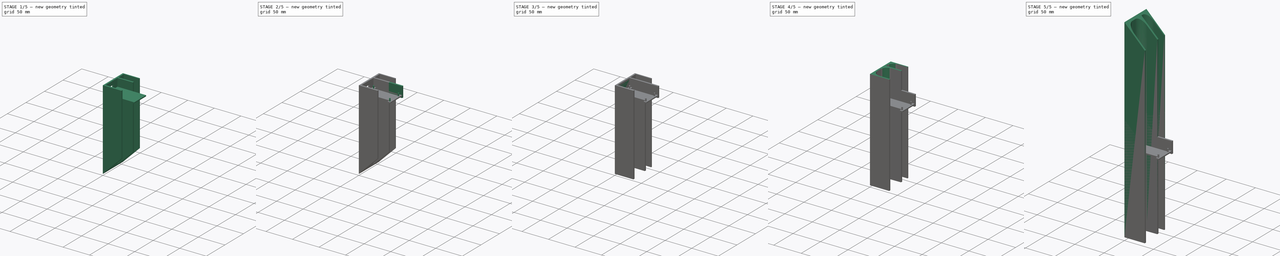
[diagram: build sequence overview — one tinted view per stage of 5, left to right]
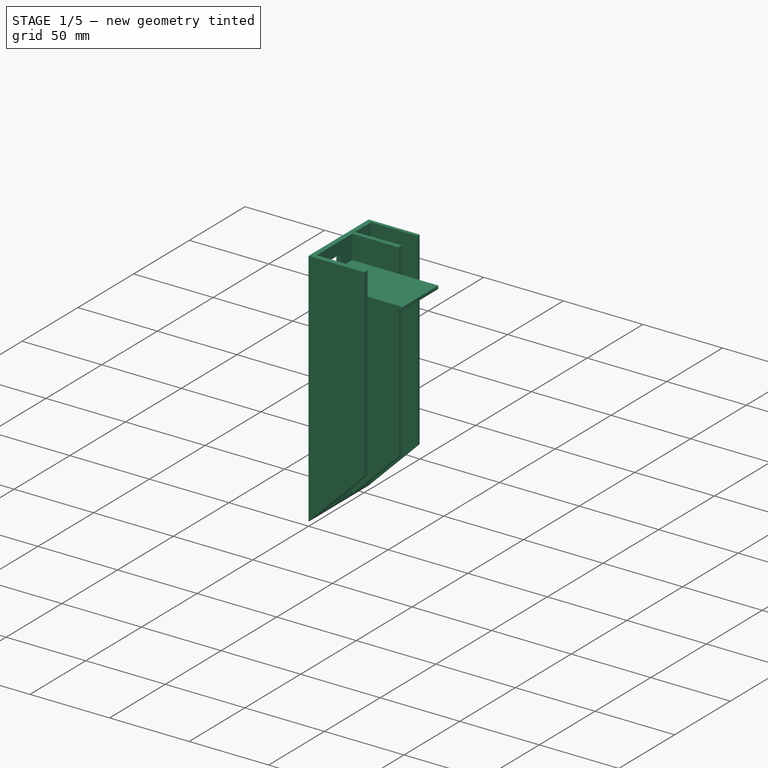
[diagram: stage 1 of 5 — iso view after this stage's code; geometry added in this stage tinted green]
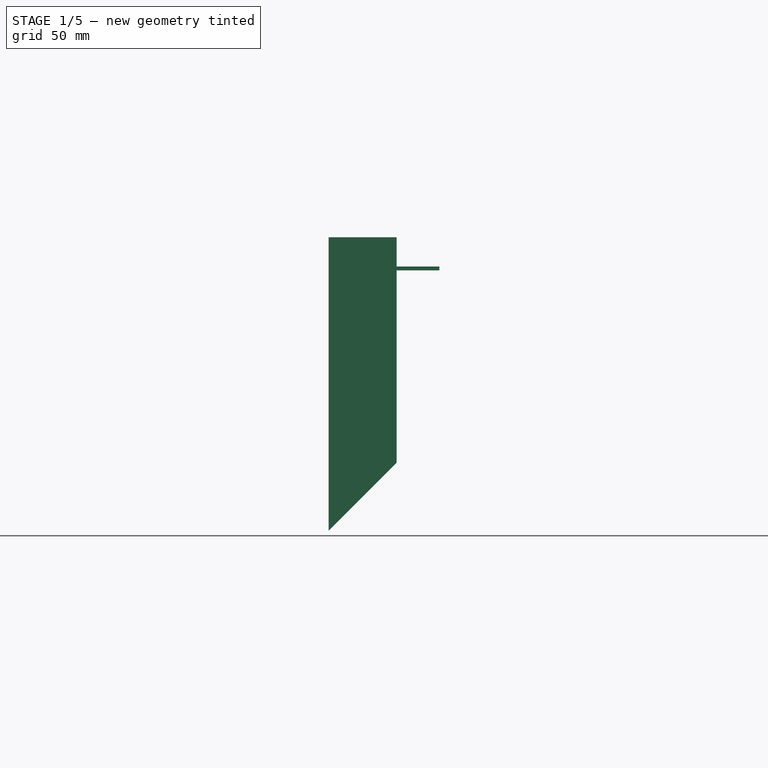
[diagram: stage 1 of 5 — front view after this stage's code; geometry added in this stage tinted green]
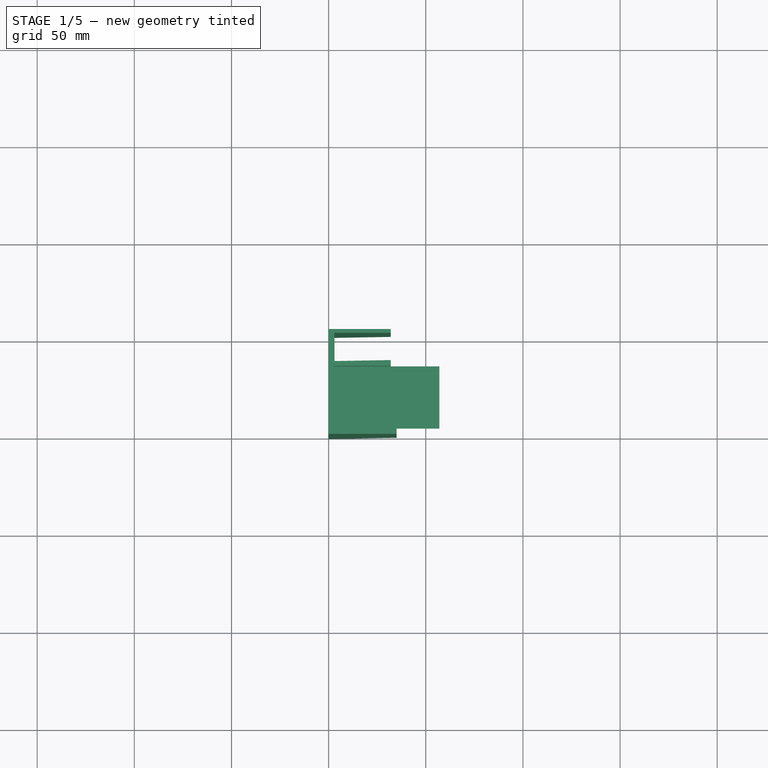
[diagram: stage 1 of 5 — top view after this stage's code; geometry added in this stage tinted green]
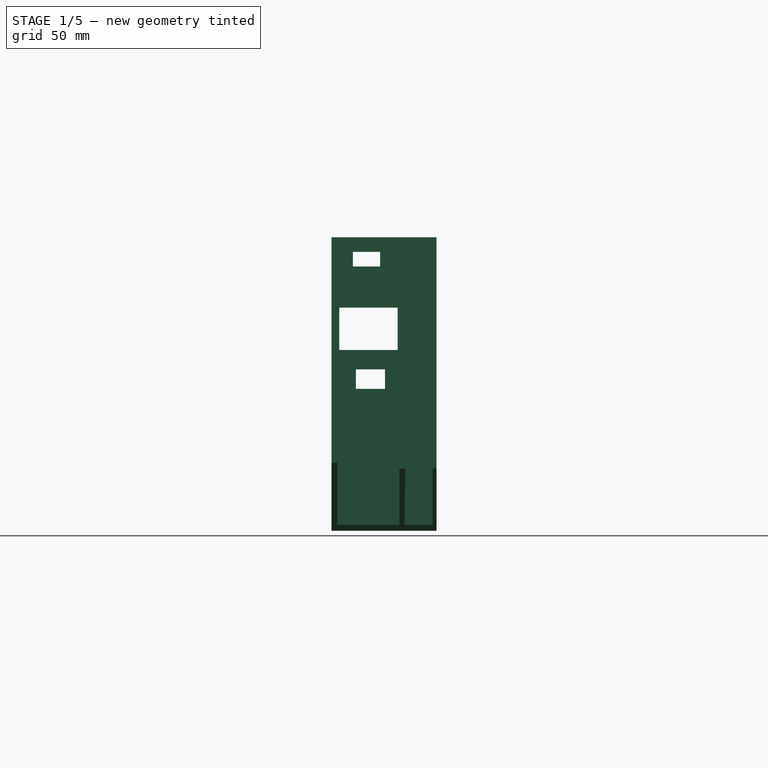
[diagram: stage 1 of 5 — right view after this stage's code; geometry added in this stage tinted green]
FCSTD DOCUMENT  (FreeCAD 2024.317R38972 (Git))
Label: frame_edge_basic
License: All rights reserved
LicenseURL: https://en.wikipedia.org/wiki/All_rights_reserved
objects: Sketcher::SketchObject×18, PartDesign::Pad×9, PartDesign::Pocket×9, PartDesign::Body×5
note: 95 computed .brp shape members not serialized (recipe doc carries the construction recipe); baked Part::Feature solids carry a one-line shape summary decoded from their .brp

FEATURE [PartDesign::Body] Body003  label="Bottom_R"
  AutoGroupSolids = false
  ClaimAllChildren = false
  ExportMode = 0
  Group = -> [Sketch008,Pad003,Sketch010,Pocket006,Sketch011,Pad004]
  InvalidShape = false
  Origin = -> Origin003
  Tip = -> Pad004
  TreeRank = 20
  ValidateShape = false
  _ExportChildren = -> [Pad003,Pocket006,Pad004]
  _GroupVersion = 1
FEATURE [Sketcher::SketchObject] Sketch012  label="Frame-edge-base-sketch004"
  ArcFitTolerance = 1e-06
  AttachmentSupport = -> [XY_Plane004]
  ExternalBSplineMaxDegree = 5
  ExternalBSplineTolerance = 0.0001
  FullyConstrained = true
  InternalTolerance = 1e-06
  InvalidShape = false
  MakeInternals = false
  MapMode = 5
  Support = -> [XY_Plane004]
  TreeRank = 11
  ValidateShape = false
  sketch-geometry (13):
    g0: LineSegment StartX=3 StartY=40.5 StartZ=0 EndX=3 EndY=37.5 EndZ=0
    g1: LineSegment StartX=3 StartY=37.5 StartZ=0 EndX=32 EndY=38 EndZ=0
    g2: LineSegment StartX=32 StartY=38 StartZ=0 EndX=32 EndY=35 EndZ=0
    g3: LineSegment StartX=35 StartY=3 StartZ=0 EndX=35 EndY=0 EndZ=0
    g4: LineSegment StartX=35 StartY=0 StartZ=0 EndX=0 EndY=0 EndZ=0
    g5: LineSegment StartX=0 StartY=0 StartZ=0 EndX=-2e-16 EndY=54 EndZ=0
    g6: LineSegment StartX=-2e-16 StartY=54 StartZ=0 EndX=32 EndY=54 EndZ=0
    g7: LineSegment StartX=32 StartY=54 StartZ=0 EndX=32 EndY=52 EndZ=0
    g8: LineSegment StartX=3 StartY=40.5 StartZ=0 EndX=3 EndY=52 EndZ=0
    g9: LineSegment StartX=3 StartY=35 StartZ=0 EndX=32 EndY=35 EndZ=0
    g10: LineSegment StartX=3 StartY=52 StartZ=0 EndX=32 EndY=52 EndZ=0
    g11: LineSegment StartX=3 StartY=35 StartZ=0 EndX=3 EndY=3 EndZ=0
    g12: LineSegment StartX=3 StartY=3 StartZ=0 EndX=35 EndY=3 EndZ=0
  constraints (38):
    c: Coincident(g0,g1)
    c: Coincident(g1,g2)
    c: Coincident(g3,g4)
    c: Horizontal(g4)
    c: Coincident(g4,g5)
    c: Coincident(g5,g6)
    c: Horizontal(g6)
    c: Coincident(g6,g7)
    c: DistanceY(g7,g6) = 2
    c: DistanceY(g3,g3) = 3
    c: DistanceY(g2,g1) = 3
    c: DistanceX(g5,g0) = 3
    c: Vertical(g7,g6)
    c: Vertical(g3,g3)
    c: Vertical(g2,g1)
    c: Coincident(g4,g-1)
    c: DistanceX(g4,g3) = 35
    c: DistanceY(g4,g5) = 54
    c: DistanceX(g0,g1) = 29
    c: DistanceX(g5,g6) = 32
    c: DistanceX(g5,g0) = 3
    c: DistanceY(g0,g5) = 16.5
    c: DistanceY(g0,g0) = 3
    c: DistanceY(g1,g7) = 14
    c: Coincident(g8,g0)
    c: Vertical(g8)
    c: Coincident(g9,g2)
    c: Horizontal(g9)
    c: Coincident(g10,g8)
    c: Coincident(g10,g7)
    c: Horizontal(g10)
    c: Coincident(g11,g9)
    c: Vertical(g11)
    c: Coincident(g12,g11)
    c: Coincident(g12,g3)
    c: Horizontal(g12)
    c: DistanceX(g11,g3) = 32
    c: Vertical(g9,g0)
FEATURE [PartDesign::Pad] Pad005
  AddSubType = 0
  AlongSketchNormal = false
  AutoTaperInnerAngle = true
  CheckUpToFaceLimits = true
  ClaimChildren = false
  Direction = (0,0,1)
  Fit = 0
  FitJoin = 0
  InnerFit = 0
  InnerFitJoin = 0
  InvalidShape = false
  Length = 151
  Length2 = 10
  Linearize = true
  NewSolid = false
  Profile = -> Sketch012
  ReferenceAxis = -> Sketch012 [N_Axis]
  Suppress = false
  TaperInnerAngle = 0
  TaperInnerAngleRev = 0
  TreeRank = 12
  Type = 0
  ValidateShape = true
  _ProfileBasedVersion = 1
  expr: Length = 334 mm - 180 - 3
FEATURE [Sketcher::SketchObject] Sketch013  label="Angle-taper-T003"
  ArcFitTolerance = 1e-06
  AttachmentSupport = -> [XZ_Plane004]
  ExternalBSplineMaxDegree = 5
  ExternalBSplineTolerance = 0.0001
  ExternalGeometry = -> [Pad005]
  FullyConstrained = true
  InternalTolerance = 1e-06
  InvalidShape = false
  MakeInternals = false
  MapMode = 5
  Placement = pos=(0,0,0) rot=(1,0,0;1.5708rad)
  Support = -> [XZ_Plane004]
  TreeRank = 15
  ValidateShape = false
  sketch-geometry (3):
    g0: LineSegment StartX=0 StartY=0 StartZ=0 EndX=35 EndY=0 EndZ=0
    g1: LineSegment StartX=35 StartY=0 StartZ=0 EndX=35 EndY=35 EndZ=0
    g2: LineSegment StartX=35 StartY=35 StartZ=0 EndX=0 EndY=0 EndZ=0
  constraints (7):
    c: Coincident(g-1,g0)
    c: Coincident(g0,g-4)
    c: Coincident(g0,g1)
    c: PointOnObject(g1,g-4)
    c: Coincident(g1,g2)
    c: Coincident(g2,g0)
    c: Angle(g0,g2) = 0.785398
FEATURE [PartDesign::Pocket] Pocket007
  AddSubType = 1
  AlongSketchNormal = false
  AutoTaperInnerAngle = true
  BaseFeature = -> Pad005
  CheckUpToFaceLimits = true
  ClaimChildren = false
  Direction = (0,1,2e-16)
  Fit = 0
  FitJoin = 0
  InnerFit = 0
  InnerFitJoin = 0
  InvalidShape = false
  Length = 5
  Length2 = 10
  Linearize = true
  NewSolid = false
  Profile = -> Sketch013
  ReferenceAxis = -> Sketch013 [N_Axis]
  Suppress = false
  TaperInnerAngle = 0
  TaperInnerAngleRev = 0
  TreeRank = 16
  Type = 1
  ValidateShape = true
  _ProfileBasedVersion = 1
  _Version = 1
FEATURE [Sketcher::SketchObject] Sketch014  label="Hole-switch-cable"
  ArcFitTolerance = 1e-06
  AttachmentSupport = -> [Pocket007]
  ExternalBSplineMaxDegree = 5
  ExternalBSplineTolerance = 0.0001
  ExternalGeometry = -> [Pocket007]
  FullyConstrained = true
  InternalTolerance = 1e-06
  InvalidShape = false
  MakeInternals = false
  MapMode = 5
  Placement = pos=(0,0,0) rot=(0.57735,-0.57735,-0.57735;2.0944rad)
  Support = -> [Pocket007]
  TreeRank = 24
  ValidateShape = false
  sketch-geometry (12):
    g0: LineSegment StartX=-27.5 StartY=83 StartZ=0 EndX=-12.5 EndY=83 EndZ=0
    g1: LineSegment StartX=-12.5 StartY=83 StartZ=0 EndX=-12.5 EndY=73 EndZ=0
    g2: LineSegment StartX=-12.5 StartY=73 StartZ=0 EndX=-27.5 EndY=73 EndZ=0
    g3: LineSegment StartX=-27.5 StartY=73 StartZ=0 EndX=-27.5 EndY=83 EndZ=0
    g4: LineSegment StartX=-34 StartY=114.8 StartZ=0 EndX=-4 EndY=114.8 EndZ=0
    g5: LineSegment StartX=-4 StartY=114.8 StartZ=0 EndX=-4 EndY=93 EndZ=0
    g6: LineSegment StartX=-4 StartY=93 StartZ=0 EndX=-34 EndY=93 EndZ=0
    g7: LineSegment StartX=-34 StartY=93 StartZ=0 EndX=-34 EndY=114.8 EndZ=0
    g8: LineSegment StartX=-25 StartY=143.5 StartZ=0 EndX=-11 EndY=143.5 EndZ=0
    g9: LineSegment StartX=-11 StartY=143.5 StartZ=0 EndX=-11 EndY=134.5 EndZ=0
    g10: LineSegment StartX=-11 StartY=134.5 StartZ=0 EndX=-25 EndY=134.5 EndZ=0
    g11: LineSegment StartX=-25 StartY=134.5 StartZ=0 EndX=-25 EndY=143.5 EndZ=0
  constraints (36):
    c: Coincident(g0,g1)
    c: Coincident(g1,g2)
    c: Coincident(g2,g3)
    c: Coincident(g3,g0)
    c: Horizontal(g0)
    c: Horizontal(g2)
    c: Vertical(g1)
    c: Vertical(g3)
    c: DistanceY(g-1,g2) = 73
    c: DistanceY(g2,g0) = 10
    c: DistanceX(g2,g1) = 15
    c: DistanceX(g-4,g2) = 7.5
    c: Coincident(g4,g5)
    c: Coincident(g5,g6)
    c: Coincident(g6,g7)
    c: Coincident(g7,g4)
    c: Horizontal(g4)
    c: Horizontal(g6)
    c: Vertical(g5)
    c: Vertical(g7)
    c: DistanceY(g0,g5) = 10
    c: DistanceX(g6,g5) = 30
    c: DistanceY(g5,g4) = 21.8
    c: Coincident(g8,g9)
    c: Coincident(g9,g10)
    c: Coincident(g10,g11)
    c: Coincident(g11,g8)
    c: Horizontal(g8)
    c: Horizontal(g10)
    c: Vertical(g9)
    c: Vertical(g11)
    c: DistanceX(g10,g9) = 14
    c: DistanceY(g9,g8) = 9
    c: DistanceX(g8,g-3) = 11
    c: DistanceY(g8,g-3) = 7.5
    c: DistanceX(g-4,g4) = 1
FEATURE [PartDesign::Pocket] Pocket008
  AddSubType = 1
  AlongSketchNormal = false
  AutoTaperInnerAngle = true
  BaseFeature = -> Pocket007
  CheckUpToFaceLimits = true
  ClaimChildren = false
  Direction = (1,0,0)
  Fit = 0
  FitJoin = 0
  InnerFit = 0
  InnerFitJoin = 0
  InvalidShape = false
  Length = 5
  Length2 = 10
  Linearize = true
  NewSolid = false
  Profile = -> Sketch014
  ReferenceAxis = -> Sketch014 [N_Axis]
  Suppress = false
  TaperInnerAngle = 0
  TaperInnerAngleRev = 0
  TreeRank = 25
  Type = 0
  ValidateShape = true
  _ProfileBasedVersion = 1
  _Version = 1
FEATURE [Sketcher::SketchObject] Sketch015  label="ESP_pad"
  ArcFitTolerance = 1e-06
  AttachmentSupport = -> [Pocket008]
  ExternalBSplineMaxDegree = 5
  ExternalBSplineTolerance = 0.0001
  ExternalGeometry = -> [Pocket008]
  FullyConstrained = true
  InternalTolerance = 1e-06
  InvalidShape = false
  MakeInternals = false
  MapMode = 5
  Placement = pos=(0,35,0) rot=(1,0,0;1.5708rad)
  Support = -> [Pocket008]
  TreeRank = 26
  ValidateShape = false
  sketch-geometry (4):
    g0: LineSegment StartX=3 StartY=136 StartZ=0 EndX=57 EndY=136 EndZ=0
    g1: LineSegment StartX=57 StartY=136 StartZ=0 EndX=57 EndY=134 EndZ=0
    g2: LineSegment StartX=57 StartY=134 StartZ=0 EndX=3 EndY=134 EndZ=0
    g3: LineSegment StartX=3 StartY=134 StartZ=0 EndX=3 EndY=136 EndZ=0
  constraints (12):
    c: Coincident(g0,g1)
    c: Coincident(g1,g2)
    c: Coincident(g2,g3)
    c: Coincident(g3,g0)
    c: Horizontal(g0)
    c: Horizontal(g2)
    c: Vertical(g1)
    c: Vertical(g3)
    c: DistanceX(g2,g1) = 54
    c: DistanceY(g2,g0) = 2
    c: DistanceY(g0,g-3) = 15
    c: Vertical(g-3,g0)
FEATURE [PartDesign::Pad] Pad006
  AddSubType = 0
  AlongSketchNormal = false
  AutoTaperInnerAngle = true
  BaseFeature = -> Pocket008
  CheckUpToFaceLimits = true
  ClaimChildren = false
  Direction = (0,-1,2e-16)
  Fit = 0
  FitJoin = 0
  InnerFit = 0
  InnerFitJoin = 0
  InvalidShape = false
  Length = 32
  Length2 = 10
  Linearize = true
  NewSolid = false
  Profile = -> Sketch015
  ReferenceAxis = -> Sketch015 [N_Axis]
  Suppress = false
  TaperInnerAngle = 0
  TaperInnerAngleRev = 0
  TreeRank = 27
  Type = 0
  ValidateShape = true
  _ProfileBasedVersion = 1
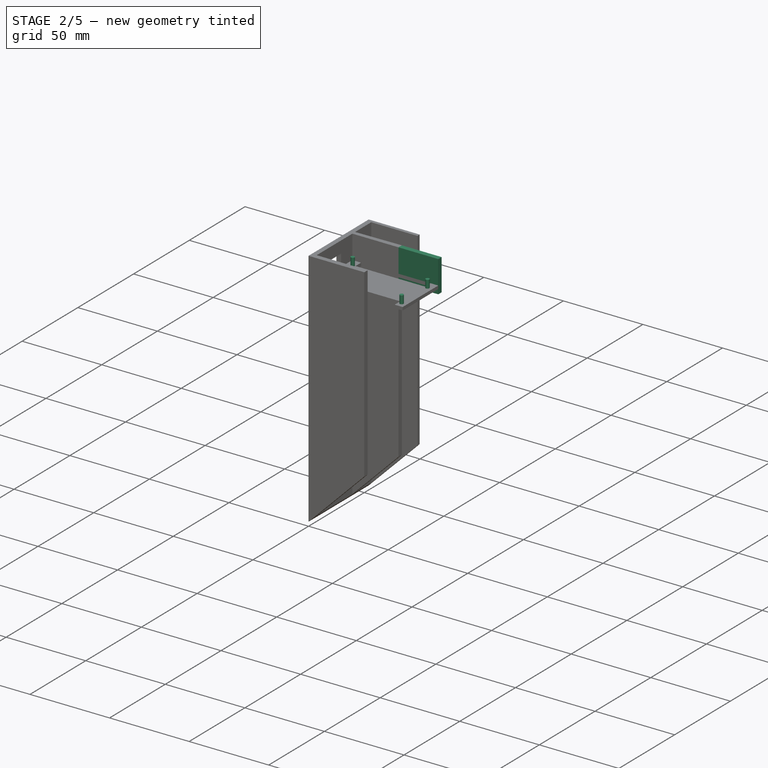
[diagram: stage 2 of 5 — iso view after this stage's code; geometry added in this stage tinted green]
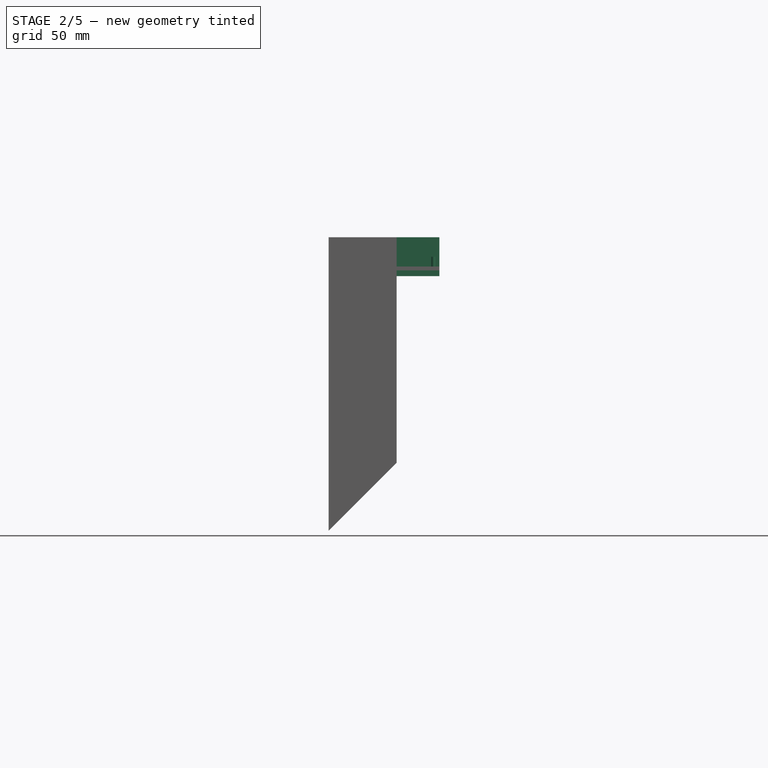
[diagram: stage 2 of 5 — front view after this stage's code; geometry added in this stage tinted green]
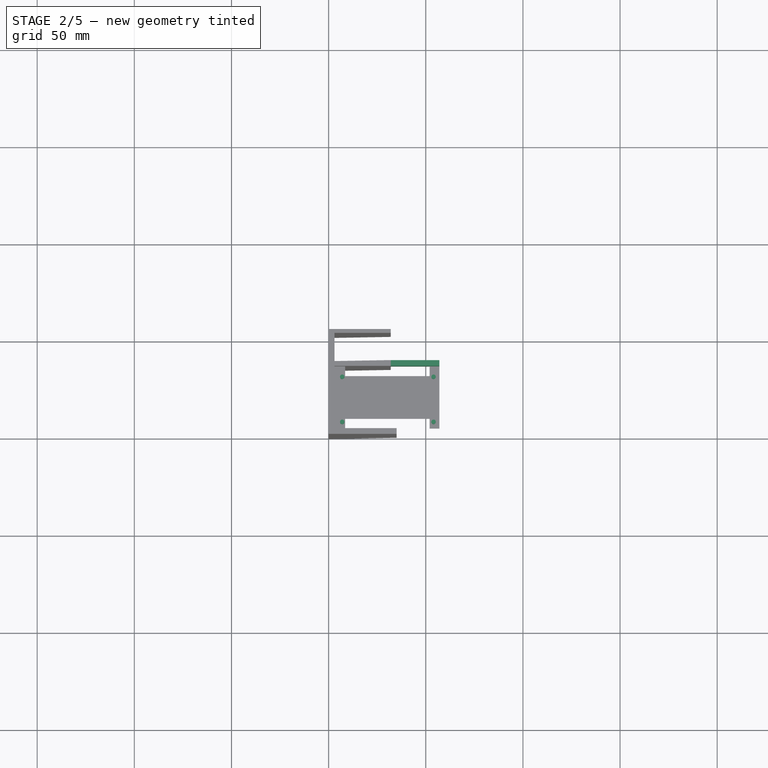
[diagram: stage 2 of 5 — top view after this stage's code; geometry added in this stage tinted green]
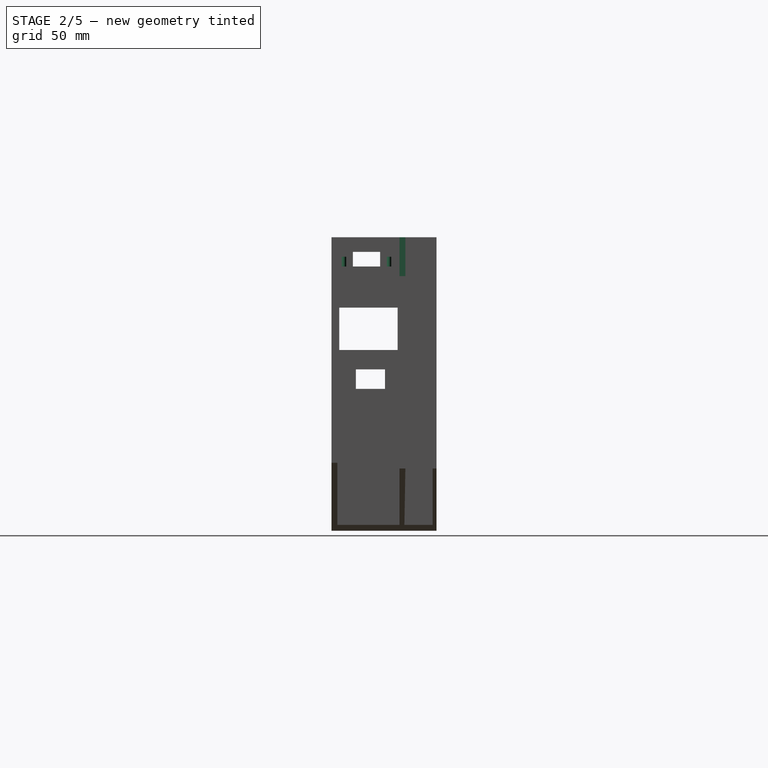
[diagram: stage 2 of 5 — right view after this stage's code; geometry added in this stage tinted green]
FEATURE [Sketcher::SketchObject] Sketch016  label="ESP_pad_extruded_holders"
  ArcFitTolerance = 1e-06
  AttachmentSupport = -> [Pad006]
  ExternalBSplineMaxDegree = 5
  ExternalBSplineTolerance = 0.0001
  ExternalGeometry = -> [Pad006]
  FullyConstrained = true
  InternalTolerance = 1e-06
  InvalidShape = false
  MakeInternals = false
  MapMode = 5
  Placement = pos=(0,3.02e-14,136) rot=(0,0,1;0rad)
  Support = -> [Pad006]
  TreeRank = 28
  ValidateShape = false
  expr: Constraints[0] = 44 mm + 3
  expr: Constraints[8] = 20.2 mm + 3
  sketch-geometry (4):
    g0: Circle CenterX=7 CenterY=29.6 CenterZ=0 NormalX=0 NormalY=0 NormalZ=1 AngleXU=0 Radius=1.15
    g1: Circle CenterX=7 CenterY=6.4 CenterZ=0 NormalX=0 NormalY=0 NormalZ=1 AngleXU=0 Radius=1.15
    g2: Circle CenterX=54 CenterY=29.6 CenterZ=0 NormalX=0 NormalY=0 NormalZ=1 AngleXU=0 Radius=1.15
    g3: Circle CenterX=54 CenterY=6.4 CenterZ=0 NormalX=0 NormalY=0 NormalZ=1 AngleXU=0 Radius=1.15
  constraints (12):
    c: DistanceX(g0,g2) = 47
    c: Diameter(g0) = 2.3
    c: Diameter(g2) = 2.3
    c: Vertical(g1,g0)
    c: Vertical(g3,g2)
    c: Horizontal(g3,g1)
    c: Equal(g3,g1)
    c: Diameter(g3) = 2.3
    c: DistanceY(g1,g0) = 23.2
    c: Horizontal(g2,g0)
    c: DistanceX(g-4,g0) = 4
    c: DistanceY(g-7,g0) = 4.6
FEATURE [PartDesign::Pad] Pad007
  AddSubType = 0
  AlongSketchNormal = false
  AutoTaperInnerAngle = true
  BaseFeature = -> Pad006
  CheckUpToFaceLimits = true
  ClaimChildren = false
  Direction = (0,2e-16,1)
  Fit = 0
  FitJoin = 0
  InnerFit = 0
  InnerFitJoin = 0
  InvalidShape = false
  Length = 5
  Length2 = 10
  Linearize = true
  NewSolid = false
  Profile = -> Sketch016
  ReferenceAxis = -> Sketch016 [N_Axis]
  Suppress = false
  TaperInnerAngle = 0
  TaperInnerAngleRev = 0
  TreeRank = 29
  Type = 0
  ValidateShape = true
  _ProfileBasedVersion = 1
FEATURE [Sketcher::SketchObject] Sketch017  label="ESP_pocket_pins"
  ArcFitTolerance = 1e-06
  AttachmentSupport = -> [Pad007]
  ExternalBSplineMaxDegree = 5
  ExternalBSplineTolerance = 0.0001
  ExternalGeometry = -> [Pad007]
  FullyConstrained = true
  InternalTolerance = 1e-06
  InvalidShape = false
  MakeInternals = false
  MapMode = 5
  Placement = pos=(0,3.02e-14,136) rot=(0,0,1;0rad)
  Support = -> [Pad007]
  TreeRank = 30
  ValidateShape = false
  sketch-geometry (8):
    g0: LineSegment StartX=8.5 StartY=35 StartZ=0 EndX=52 EndY=35 EndZ=0
    g1: LineSegment StartX=52 StartY=35 StartZ=0 EndX=52 EndY=30 EndZ=0
    g2: LineSegment StartX=52 StartY=30 StartZ=0 EndX=8.5 EndY=30 EndZ=0
    g3: LineSegment StartX=8.5 StartY=30 StartZ=0 EndX=8.5 EndY=35 EndZ=0
    g4: LineSegment StartX=8.5 StartY=8 StartZ=0 EndX=52 EndY=8 EndZ=0
    g5: LineSegment StartX=52 StartY=8 StartZ=0 EndX=52 EndY=3 EndZ=0
    g6: LineSegment StartX=52 StartY=3 StartZ=0 EndX=8.5 EndY=3 EndZ=0
    g7: LineSegment StartX=8.5 StartY=3 StartZ=0 EndX=8.5 EndY=8 EndZ=0
  constraints (24):
    c: Coincident(g0,g1)
    c: Coincident(g1,g2)
    c: Coincident(g2,g3)
    c: Coincident(g3,g0)
    c: Horizontal(g0)
    c: Horizontal(g2)
    c: Vertical(g1)
    c: Vertical(g3)
    c: DistanceX(g2,g1) = 43.5
    c: DistanceY(g1,g0) = 5
    c: DistanceY(g0,g-5) = 0
    c: DistanceX(g-5,g0) = 5.5
    c: Coincident(g4,g5)
    c: Coincident(g5,g6)
    c: Coincident(g6,g7)
    c: Coincident(g7,g4)
    c: Horizontal(g4)
    c: Horizontal(g6)
    c: Vertical(g5)
    c: Vertical(g7)
    c: DistanceX(g4,g4) = 43.5
    c: DistanceY(g6,g4) = 5
    c: Vertical(g4,g2)
    c: DistanceY(g-5,g6) = 0
FEATURE [PartDesign::Pocket] Pocket009
  AddSubType = 1
  AlongSketchNormal = false
  AutoTaperInnerAngle = true
  BaseFeature = -> Pad007
  CheckUpToFaceLimits = true
  ClaimChildren = false
  Direction = (0,-2e-16,-1)
  Fit = 0
  FitJoin = 0
  InnerFit = 0
  InnerFitJoin = 0
  InvalidShape = false
  Length = 5
  Length2 = 10
  Linearize = true
  NewSolid = false
  Profile = -> Sketch017
  ReferenceAxis = -> Sketch017 [N_Axis]
  Suppress = false
  TaperInnerAngle = 0
  TaperInnerAngleRev = 0
  TreeRank = 31
  Type = 0
  ValidateShape = true
  _ProfileBasedVersion = 1
  _Version = 1
FEATURE [Sketcher::SketchObject] Sketch018  label="ESP_additional_stabilization"
  ArcFitTolerance = 1e-06
  AttachmentSupport = -> [Pocket009]
  ExternalBSplineMaxDegree = 5
  ExternalBSplineTolerance = 0.0001
  ExternalGeometry = -> [Pocket009]
  FullyConstrained = true
  InternalTolerance = 1e-06
  InvalidShape = false
  MakeInternals = false
  MapMode = 5
  Placement = pos=(32,0,0) rot=(0.57735,0.57735,0.57735;2.0944rad)
  Support = -> [Pocket009]
  TreeRank = 32
  ValidateShape = false
  sketch-geometry (4):
    g0: LineSegment StartX=38 StartY=151 StartZ=0 EndX=35 EndY=151 EndZ=0
    g1: LineSegment StartX=35 StartY=151 StartZ=0 EndX=35 EndY=131 EndZ=0
    g2: LineSegment StartX=35 StartY=131 StartZ=0 EndX=38 EndY=131 EndZ=0
    g3: LineSegment StartX=38 StartY=131 StartZ=0 EndX=38 EndY=151 EndZ=0
  constraints (10):
    c: Coincident(g0,g1)
    c: Coincident(g1,g2)
    c: Coincident(g2,g3)
    c: Coincident(g3,g0)
    c: Horizontal(g0)
    c: Horizontal(g2)
    c: Vertical(g1)
    c: Vertical(g3)
    c: Coincident(g0,g-3)
    c: Coincident(g1,g-4)
FEATURE [PartDesign::Pad] Pad008
  AddSubType = 0
  AlongSketchNormal = false
  AutoTaperInnerAngle = true
  BaseFeature = -> Pocket009
  CheckUpToFaceLimits = true
  ClaimChildren = false
  Direction = (1,0,0)
  Fit = 0
  FitJoin = 0
  InnerFit = 0
  InnerFitJoin = 0
  InvalidShape = false
  Length = 25
  Length2 = 10
  Linearize = true
  NewSolid = false
  Profile = -> Sketch018
  ReferenceAxis = -> Sketch018 [N_Axis]
  Suppress = false
  TaperInnerAngle = 0
  TaperInnerAngleRev = 0
  TreeRank = 33
  Type = 0
  ValidateShape = true
  _ProfileBasedVersion = 1
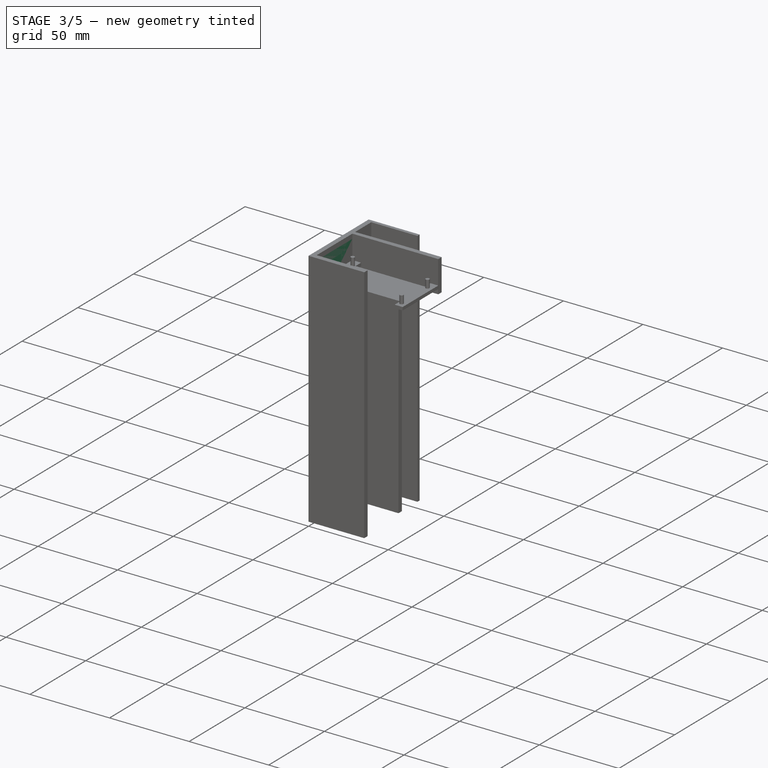
[diagram: stage 3 of 5 — iso view after this stage's code; geometry added in this stage tinted green]
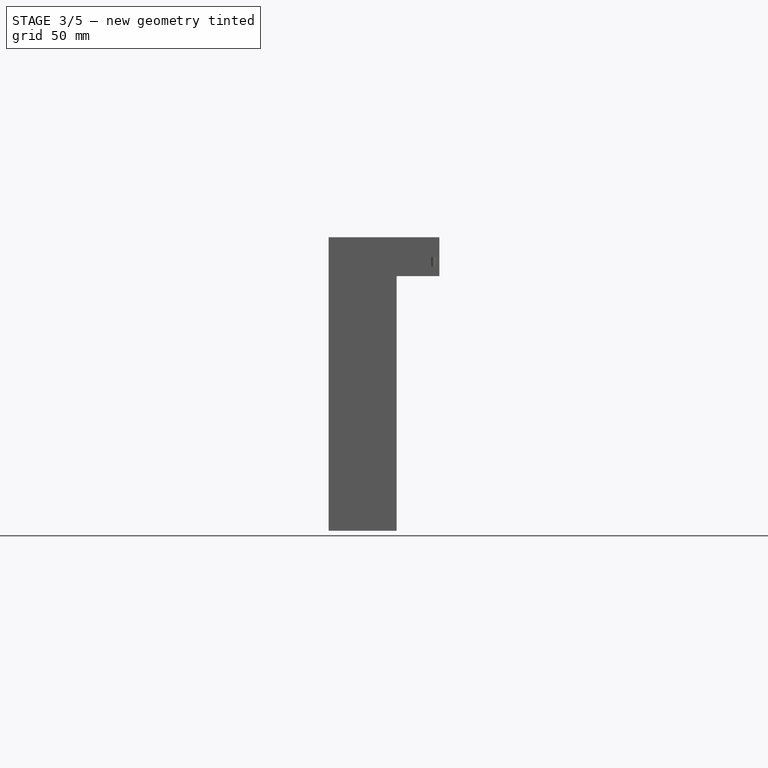
[diagram: stage 3 of 5 — front view after this stage's code; geometry added in this stage tinted green]
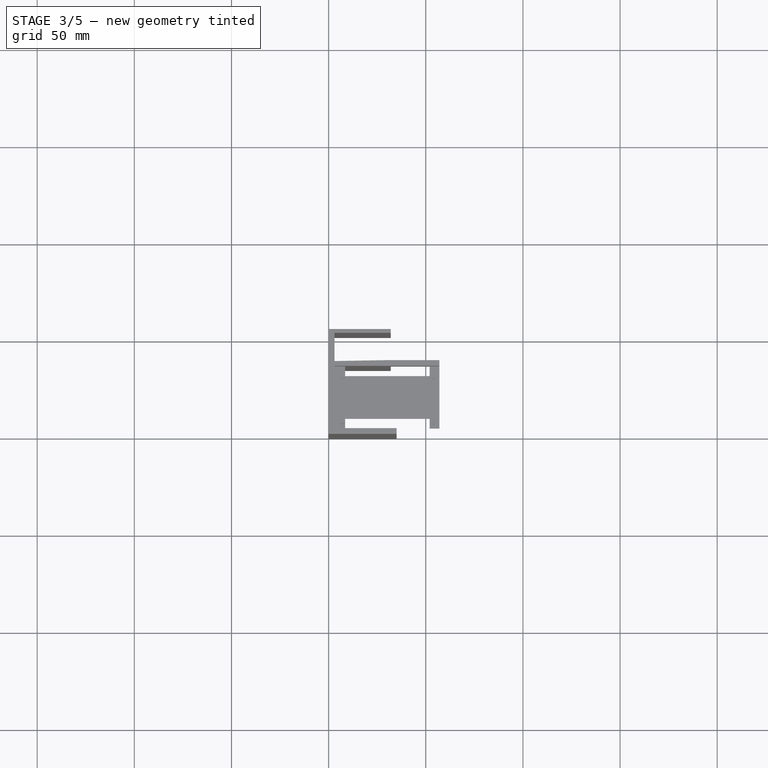
[diagram: stage 3 of 5 — top view after this stage's code; geometry added in this stage tinted green]
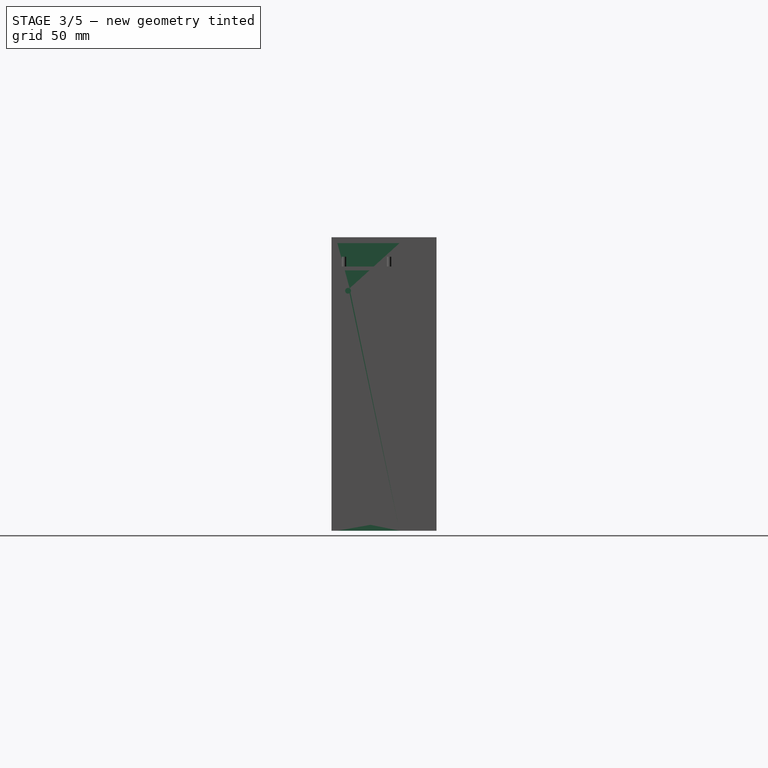
[diagram: stage 3 of 5 — right view after this stage's code; geometry added in this stage tinted green]
FEATURE [PartDesign::Body] Body002  label="Right_U"
  AutoGroupSolids = false
  ClaimAllChildren = false
  ExportMode = 0
  Group = -> [Sketch006,Pad002,Sketch007,Pocket004]
  InvalidShape = false
  Origin = -> Origin002
  Tip = -> Pocket004
  TreeRank = 19
  ValidateShape = false
  _ExportChildren = -> [Pad002,Pocket004]
  _GroupVersion = 1
FEATURE [Sketcher::SketchObject] Sketch008  label="Frame-edge-base-sketch003"
  ArcFitTolerance = 1e-06
  AttachmentSupport = -> [XY_Plane003]
  ExternalBSplineMaxDegree = 5
  ExternalBSplineTolerance = 0.0001
  FullyConstrained = true
  InternalTolerance = 1e-06
  InvalidShape = false
  MakeInternals = false
  MapMode = 5
  Support = -> [XY_Plane003]
  TreeRank = 11
  ValidateShape = false
  sketch-geometry (13):
    g0: LineSegment StartX=3 StartY=40.5 StartZ=0 EndX=3 EndY=37.5 EndZ=0
    g1: LineSegment StartX=3 StartY=37.5 StartZ=0 EndX=32 EndY=38 EndZ=0
    g2: LineSegment StartX=32 StartY=38 StartZ=0 EndX=32 EndY=35 EndZ=0
    g3: LineSegment StartX=35 StartY=3 StartZ=0 EndX=35 EndY=0 EndZ=0
    g4: LineSegment StartX=35 StartY=0 StartZ=0 EndX=0 EndY=0 EndZ=0
    g5: LineSegment StartX=0 StartY=0 StartZ=0 EndX=-2e-16 EndY=54 EndZ=0
    g6: LineSegment StartX=-2e-16 StartY=54 StartZ=0 EndX=32 EndY=54 EndZ=0
    g7: LineSegment StartX=32 StartY=54 StartZ=0 EndX=32 EndY=52 EndZ=0
    g8: LineSegment StartX=3 StartY=40.5 StartZ=0 EndX=3 EndY=52 EndZ=0
    g9: LineSegment StartX=3 StartY=35 StartZ=0 EndX=32 EndY=35 EndZ=0
    g10: LineSegment StartX=3 StartY=52 StartZ=0 EndX=32 EndY=52 EndZ=0
    g11: LineSegment StartX=3 StartY=35 StartZ=0 EndX=3 EndY=3 EndZ=0
    g12: LineSegment StartX=3 StartY=3 StartZ=0 EndX=35 EndY=3 EndZ=0
  constraints (38):
    c: Coincident(g0,g1)
    c: Coincident(g1,g2)
    c: Coincident(g3,g4)
    c: Horizontal(g4)
    c: Coincident(g4,g5)
    c: Coincident(g5,g6)
    c: Horizontal(g6)
    c: Coincident(g6,g7)
    c: DistanceY(g7,g6) = 2
    c: DistanceY(g3,g3) = 3
    c: DistanceY(g2,g1) = 3
    c: DistanceX(g5,g0) = 3
    c: Vertical(g7,g6)
    c: Vertical(g3,g3)
    c: Vertical(g2,g1)
    c: Coincident(g4,g-1)
    c: DistanceX(g4,g3) = 35
    c: DistanceY(g4,g5) = 54
    c: DistanceX(g0,g1) = 29
    c: DistanceX(g5,g6) = 32
    c: DistanceX(g5,g0) = 3
    c: DistanceY(g0,g5) = 16.5
    c: DistanceY(g0,g0) = 3
    c: DistanceY(g1,g7) = 14
    c: Coincident(g8,g0)
    c: Vertical(g8)
    c: Coincident(g9,g2)
    c: Horizontal(g9)
    c: Coincident(g10,g8)
    c: Coincident(g10,g7)
    c: Horizontal(g10)
    c: Coincident(g11,g9)
    c: Vertical(g11)
    c: Coincident(g12,g11)
    c: Coincident(g12,g3)
    c: Horizontal(g12)
    c: DistanceX(g11,g3) = 32
    c: Vertical(g9,g0)
FEATURE [PartDesign::Pad] Pad003
  AddSubType = 0
  AlongSketchNormal = false
  AutoTaperInnerAngle = true
  CheckUpToFaceLimits = true
  ClaimChildren = false
  Direction = (0,0,1)
  Fit = 0
  FitJoin = 0
  InnerFit = 0
  InnerFitJoin = 0
  InvalidShape = false
  Length = 151
  Length2 = 10
  Linearize = true
  NewSolid = false
  Profile = -> Sketch008
  ReferenceAxis = -> Sketch008 [N_Axis]
  Suppress = false
  TaperInnerAngle = 0
  TaperInnerAngleRev = 0
  TreeRank = 12
  Type = 0
  ValidateShape = true
  _ProfileBasedVersion = 1
  expr: Length = 334 mm - 180 - 3
FEATURE [Sketcher::SketchObject] Sketch010  label="Angle-taper-T002"
  ArcFitTolerance = 1e-06
  AttachmentSupport = -> [XZ_Plane003]
  ExternalBSplineMaxDegree = 5
  ExternalBSplineTolerance = 0.0001
  ExternalGeometry = -> [Pad003]
  FullyConstrained = true
  InternalTolerance = 1e-06
  InvalidShape = false
  MakeInternals = false
  MapMode = 5
  Placement = pos=(0,0,0) rot=(1,0,0;1.5708rad)
  Support = -> [XZ_Plane003]
  TreeRank = 15
  ValidateShape = false
  sketch-geometry (3):
    g0: LineSegment StartX=0 StartY=151 StartZ=0 EndX=35 EndY=151 EndZ=0
    g1: LineSegment StartX=35 StartY=151 StartZ=0 EndX=35 EndY=116 EndZ=0
    g2: LineSegment StartX=35 StartY=116 StartZ=0 EndX=0 EndY=151 EndZ=0
  constraints (7):
    c: Coincident(g-3,g0)
    c: Coincident(g0,g-4)
    c: Coincident(g0,g1)
    c: PointOnObject(g1,g-4)
    c: Coincident(g1,g2)
    c: Coincident(g2,g0)
    c: Angle(g2,g-3) = 0.785398
FEATURE [PartDesign::Pocket] Pocket006
  AddSubType = 1
  AlongSketchNormal = false
  AutoTaperInnerAngle = true
  BaseFeature = -> Pad003
  CheckUpToFaceLimits = true
  ClaimChildren = false
  Direction = (0,1,2e-16)
  Fit = 0
  FitJoin = 0
  InnerFit = 0
  InnerFitJoin = 0
  InvalidShape = false
  Length = 5
  Length2 = 10
  Linearize = true
  NewSolid = false
  Profile = -> Sketch010
  ReferenceAxis = -> Sketch010 [N_Axis]
  Suppress = false
  TaperInnerAngle = 0
  TaperInnerAngleRev = 0
  TreeRank = 16
  Type = 1
  ValidateShape = true
  _ProfileBasedVersion = 1
  _Version = 1
FEATURE [Sketcher::SketchObject] Sketch011  label="PSU-mounting-holes"
  ArcFitTolerance = 1e-06
  AttachmentSupport = -> [Pocket006]
  ExternalBSplineMaxDegree = 5
  ExternalBSplineTolerance = 0.0001
  ExternalGeometry = -> [Pocket006]
  FullyConstrained = true
  InternalTolerance = 1e-06
  InvalidShape = false
  MakeInternals = false
  MapMode = 5
  Placement = pos=(3,0,0) rot=(0.57735,0.57735,0.57735;2.0944rad)
  Support = -> [Pocket006]
  TreeRank = 21
  ValidateShape = false
  sketch-geometry (2):
    g0: Circle CenterX=8.5 CenterY=123.5 CenterZ=0 NormalX=0 NormalY=0 NormalZ=1 AngleXU=0 Radius=1.5
    g1: Circle CenterX=20 CenterY=1.5 CenterZ=0 NormalX=0 NormalY=0 NormalZ=1 AngleXU=0 Radius=1.5
  constraints (6):
    c: DistanceY(g-1,g0) = 123.5
    c: DistanceX(g0,g-3) = 26.5
    c: DistanceX(g1,g-3) = 15
    c: Diameter(g0) = 3
    c: Diameter(g1) = 3
    c: DistanceY(g-1,g1) = 1.5
FEATURE [PartDesign::Pad] Pad004
  AddSubType = 0
  AlongSketchNormal = false
  AutoTaperInnerAngle = true
  BaseFeature = -> Pocket006
  CheckUpToFaceLimits = true
  ClaimChildren = false
  Direction = (1,0,0)
  Fit = 0
  FitJoin = 0
  InnerFit = 0
  InnerFitJoin = 0
  InvalidShape = false
  Length = 5
  Length2 = 10
  Linearize = true
  NewSolid = false
  Profile = -> Sketch011
  ReferenceAxis = -> Sketch011 [N_Axis]
  Suppress = false
  TaperInnerAngle = 0
  TaperInnerAngleRev = 0
  TreeRank = 22
  Type = 0
  ValidateShape = true
  _ProfileBasedVersion = 1
FEATURE [Sketcher::SketchObject] Sketch019  label="USB_entry"
  ArcFitTolerance = 1e-06
  AttachmentSupport = -> [Pad008]
  ExternalBSplineMaxDegree = 5
  ExternalBSplineTolerance = 0.0001
  ExternalGeometry = -> [Pad008]
  FullyConstrained = true
  InternalTolerance = 1e-06
  InvalidShape = false
  MakeInternals = false
  MapMode = 5
  Placement = pos=(0,3.02e-14,136) rot=(0,0,1;0rad)
  Support = -> [Pad008]
  TreeRank = 34
  ValidateShape = false
  sketch-geometry (4):
    g0: LineSegment StartX=3 StartY=25 StartZ=0 EndX=8 EndY=25 EndZ=0
    g1: LineSegment StartX=8 StartY=25 StartZ=0 EndX=8 EndY=11 EndZ=0
    g2: LineSegment StartX=8 StartY=11 StartZ=0 EndX=3 EndY=11 EndZ=0
    g3: LineSegment StartX=3 StartY=11 StartZ=0 EndX=3 EndY=25 EndZ=0
  constraints (10):
    c: Coincident(g0,g1)
    c: Coincident(g1,g2)
    c: Coincident(g2,g3)
    c: Coincident(g3,g0)
    c: Horizontal(g0)
    c: Horizontal(g2)
    c: Vertical(g1)
    c: Coincident(g0,g-3)
    c: Coincident(g2,g-3)
    c: DistanceX(g0,g0) = 5
FEATURE [PartDesign::Pocket] Pocket010
  AddSubType = 1
  AlongSketchNormal = false
  AutoTaperInnerAngle = true
  BaseFeature = -> Pad008
  CheckUpToFaceLimits = true
  ClaimChildren = false
  Direction = (0,-2e-16,-1)
  Fit = 0
  FitJoin = 0
  InnerFit = 0
  InnerFitJoin = 0
  InvalidShape = false
  Length = 1.5
  Length2 = 10
  Linearize = true
  NewSolid = false
  Profile = -> Sketch019
  ReferenceAxis = -> Sketch019 [N_Axis]
  Suppress = false
  TaperInnerAngle = 0
  TaperInnerAngleRev = 0
  TreeRank = 35
  Type = 0
  ValidateShape = true
  _ProfileBasedVersion = 1
  _Version = 1
FEATURE [PartDesign::Body] Body004  label="Right_B"
  AutoGroupSolids = false
  ClaimAllChildren = false
  ExportMode = 0
  Group = -> [Sketch012,Pad005,Sketch013,Pocket007,Sketch014,Pocket008,Sketch015,Pad006,Sketch016,Pad007,Sketch017,Pocket009,Sketch018,Pad008,Sketch019,Pocket010]
  InvalidShape = false
  Origin = -> Origin004
  Tip = -> Pocket010
  TreeRank = 23
  ValidateShape = false
  _ExportChildren = -> [Pad005,Pocket007,Pocket008,Pad006,Pad007,Pocket009,Pad008,Pocket010]
  _GroupVersion = 1
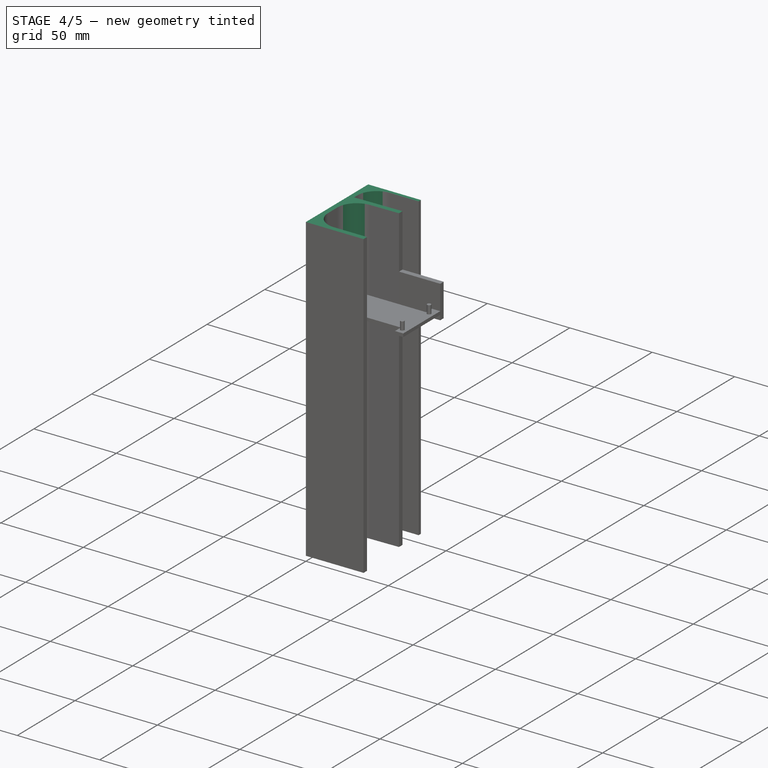
[diagram: stage 4 of 5 — iso view after this stage's code; geometry added in this stage tinted green]
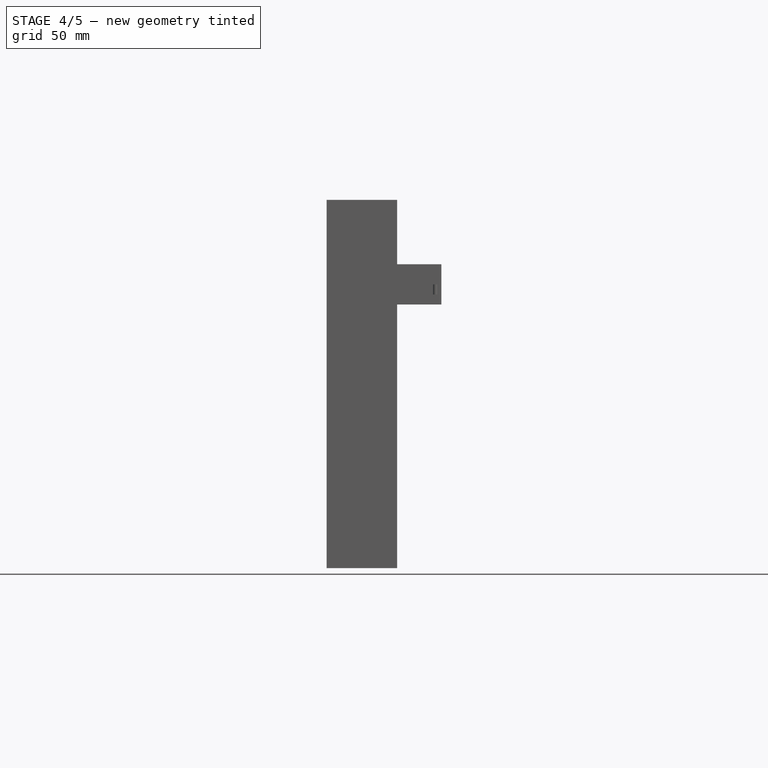
[diagram: stage 4 of 5 — front view after this stage's code; geometry added in this stage tinted green]
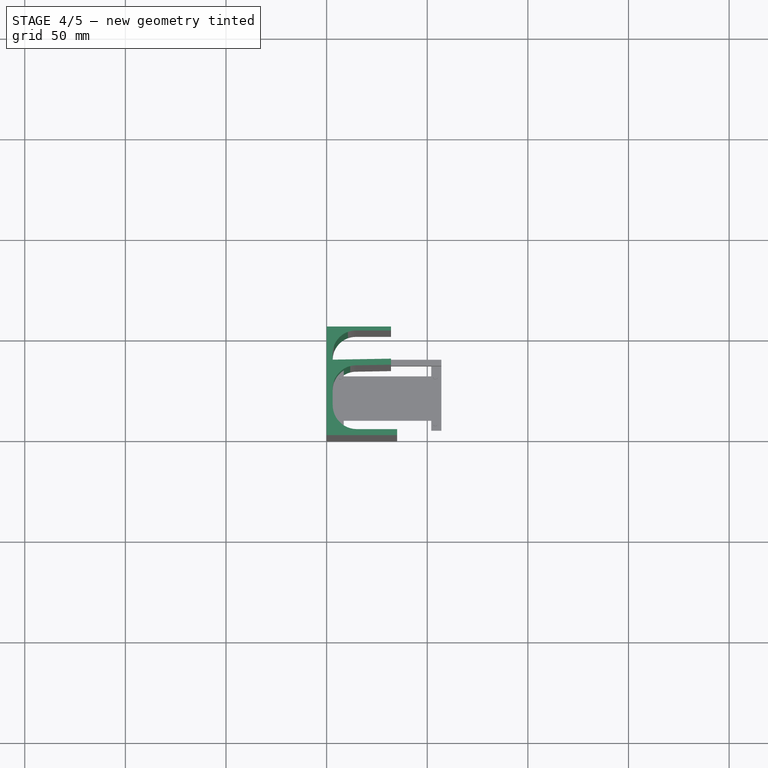
[diagram: stage 4 of 5 — top view after this stage's code; geometry added in this stage tinted green]
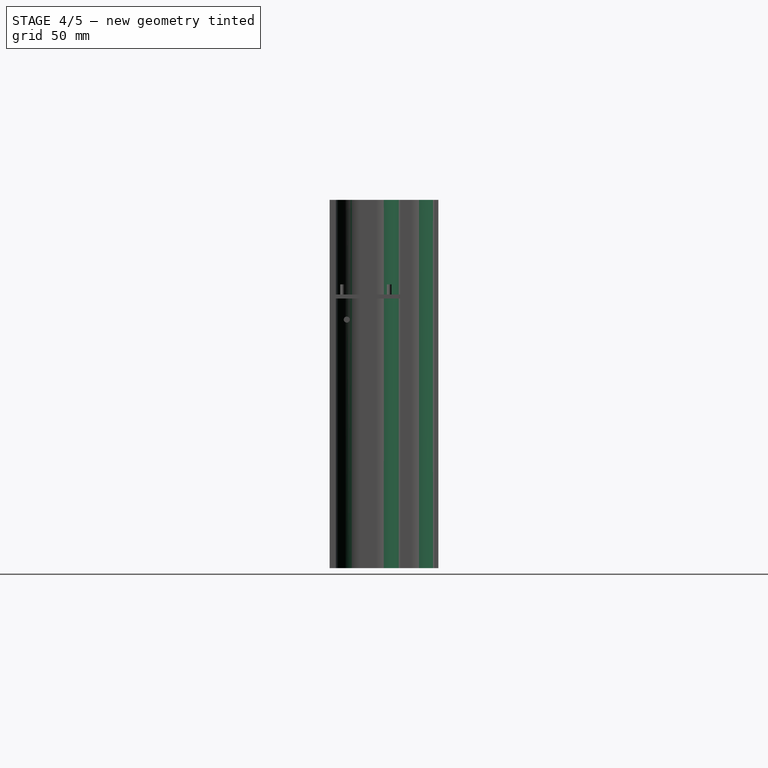
[diagram: stage 4 of 5 — right view after this stage's code; geometry added in this stage tinted green]
FEATURE [PartDesign::Body] Body  label="Top_and_left"
  AutoGroupSolids = false
  ClaimAllChildren = false
  ExportMode = 0
  Group = -> [Sketch,Pad,Sketch001,Pocket,Sketch002,Pocket001]
  InvalidShape = false
  Origin = -> Origin
  Tip = -> Pocket001
  TreeRank = 10
  ValidateShape = false
  _ExportChildren = -> [Pad,Pocket,Pocket001]
  _GroupVersion = 1
FEATURE [Sketcher::SketchObject] Sketch003  label="Frame-edge-base-sketch001"
  ArcFitTolerance = 1e-06
  AttachmentSupport = -> [XY_Plane001]
  ExternalBSplineMaxDegree = 5
  ExternalBSplineTolerance = 0.0001
  FullyConstrained = true
  InternalTolerance = 1e-06
  InvalidShape = false
  MakeInternals = false
  MapMode = 5
  Support = -> [XY_Plane001]
  TreeRank = 11
  ValidateShape = false
  sketch-geometry (15):
    g0: LineSegment StartX=32 StartY=52 StartZ=0 EndX=14.5 EndY=52 EndZ=0
    g1: LineSegment StartX=3 StartY=40.5 StartZ=0 EndX=3 EndY=37.5 EndZ=0
    g2: LineSegment StartX=3 StartY=37.5 StartZ=0 EndX=32 EndY=38 EndZ=0
    g3: LineSegment StartX=32 StartY=38 StartZ=0 EndX=32 EndY=35 EndZ=0
    g4: LineSegment StartX=32 StartY=35 StartZ=0 EndX=14.4983 EndY=34.6982 EndZ=0
    g5: LineSegment StartX=3 StartY=23 StartZ=0 EndX=3 EndY=15 EndZ=0
    g6: LineSegment StartX=15 StartY=3 StartZ=0 EndX=35 EndY=3 EndZ=0
    g7: LineSegment StartX=35 StartY=3 StartZ=0 EndX=35 EndY=0 EndZ=0
    g8: LineSegment StartX=35 StartY=0 StartZ=0 EndX=0 EndY=0 EndZ=0
    g9: LineSegment StartX=0 StartY=0 StartZ=0 EndX=-2e-16 EndY=54 EndZ=0
    g10: LineSegment StartX=-2e-16 StartY=54 StartZ=0 EndX=32 EndY=54 EndZ=0
    g11: LineSegment StartX=32 StartY=54 StartZ=0 EndX=32 EndY=52 EndZ=0
    g12: ArcOfCircle CenterX=15 CenterY=15 CenterZ=0 NormalX=0 NormalY=0 NormalZ=1 AngleXU=0 Radius=12 StartAngle=3.14159 EndAngle=4.71239
    g13: ArcOfCircle CenterX=14.7 CenterY=23 CenterZ=0 NormalX=0 NormalY=0 NormalZ=1 AngleXU=0 Radius=11.7 StartAngle=1.58804 EndAngle=3.14159
    g14: ArcOfCircle CenterX=14.5 CenterY=40.5 CenterZ=0 NormalX=0 NormalY=0 NormalZ=1 AngleXU=0 Radius=11.5 StartAngle=1.5708 EndAngle=3.14159
  constraints (41):
    c: Horizontal(g0)
    c: Coincident(g1,g2)
    c: Coincident(g2,g3)
    c: Coincident(g3,g4)
    c: Vertical(g5)
    c: Horizontal(g6)
    c: Coincident(g6,g7)
    c: Coincident(g7,g8)
    c: Horizontal(g8)
    c: Coincident(g8,g9)
    c: Coincident(g9,g10)
    c: Horizontal(g10)
    c: Coincident(g10,g11)
    c: Coincident(g11,g0)
    c: DistanceY(g0,g10) = 2
    c: DistanceY(g7,g6) = 3
    c: DistanceY(g3,g2) = 3
    c: DistanceX(g9,g1) = 3
    c: Vertical(g0,g10)
    c: Vertical(g6,g7)
    c: Vertical(g3,g2)
    c: Coincident(g8,g-1)
    c: Tangent(g5,g12) = -1.5708
    c: Tangent(g6,g12) = -1.5708
    c: DistanceX(g8,g5) = 3
    c: DistanceX(g8,g7) = 35
    c: DistanceX(g6,g6) = 20
    c: Tangent(g4,g13) = -1.5708
    c: Tangent(g5,g13) = -1.5708
    c: DistanceY(g5,g5) = 8
    c: DistanceY(g8,g9) = 54
    c: Parallel(g4,g2)
    c: DistanceX(g9,g5) = 3
    c: DistanceX(g1,g2) = 29
    c: Tangent(g0,g14) = -1.5708
    c: Tangent(g1,g14) = -1.5708
    c: DistanceX(g9,g10) = 32
    c: DistanceX(g9,g1) = 3
    c: DistanceY(g1,g9) = 16.5
    c: DistanceY(g1,g1) = 3
    c: DistanceY(g2,g0) = 14
FEATURE [PartDesign::Pad] Pad001
  AddSubType = 0
  AlongSketchNormal = false
  AutoTaperInnerAngle = true
  CheckUpToFaceLimits = true
  ClaimChildren = false
  Direction = (0,0,1)
  Fit = 0
  FitJoin = 0
  InnerFit = 0
  InnerFitJoin = 0
  InvalidShape = false
  Length = 183
  Length2 = 10
  Linearize = true
  NewSolid = false
  Profile = -> Sketch003
  ReferenceAxis = -> Sketch003 [N_Axis]
  Suppress = false
  TaperInnerAngle = 0
  TaperInnerAngleRev = 0
  TreeRank = 12
  Type = 0
  ValidateShape = true
  _ProfileBasedVersion = 1
FEATURE [PartDesign::Body] Body001  label="Bottom_L"
  AutoGroupSolids = false
  ClaimAllChildren = false
  ExportMode = 0
  Group = -> [Sketch003,Pad001,Sketch005,Pocket003]
  InvalidShape = false
  Origin = -> Origin001
  Tip = -> Pocket003
  TreeRank = 17
  ValidateShape = false
  _ExportChildren = -> [Pad001,Pocket003]
  _GroupVersion = 1
FEATURE [Sketcher::SketchObject] Sketch006  label="Frame-edge-base-sketch002"
  ArcFitTolerance = 1e-06
  AttachmentSupport = -> [XY_Plane002]
  ExternalBSplineMaxDegree = 5
  ExternalBSplineTolerance = 0.0001
  FullyConstrained = true
  InternalTolerance = 1e-06
  InvalidShape = false
  MakeInternals = false
  MapMode = 5
  Support = -> [XY_Plane002]
  TreeRank = 11
  ValidateShape = false
  sketch-geometry (15):
    g0: LineSegment StartX=32 StartY=52 StartZ=0 EndX=14.5 EndY=52 EndZ=0
    g1: LineSegment StartX=3 StartY=40.5 StartZ=0 EndX=3 EndY=37.5 EndZ=0
    g2: LineSegment StartX=3 StartY=37.5 StartZ=0 EndX=32 EndY=38 EndZ=0
    g3: LineSegment StartX=32 StartY=38 StartZ=0 EndX=32 EndY=35 EndZ=0
    g4: LineSegment StartX=32 StartY=35 StartZ=0 EndX=14.4983 EndY=34.6982 EndZ=0
    g5: LineSegment StartX=3 StartY=23 StartZ=0 EndX=3 EndY=15 EndZ=0
    g6: LineSegment StartX=15 StartY=3 StartZ=0 EndX=35 EndY=3 EndZ=0
    g7: LineSegment StartX=35 StartY=3 StartZ=0 EndX=35 EndY=0 EndZ=0
    g8: LineSegment StartX=35 StartY=0 StartZ=0 EndX=0 EndY=0 EndZ=0
    g9: LineSegment StartX=0 StartY=0 StartZ=0 EndX=-2e-16 EndY=54 EndZ=0
    g10: LineSegment StartX=-2e-16 StartY=54 StartZ=0 EndX=32 EndY=54 EndZ=0
    g11: LineSegment StartX=32 StartY=54 StartZ=0 EndX=32 EndY=52 EndZ=0
    g12: ArcOfCircle CenterX=15 CenterY=15 CenterZ=0 NormalX=0 NormalY=0 NormalZ=1 AngleXU=0 Radius=12 StartAngle=3.14159 EndAngle=4.71239
    g13: ArcOfCircle CenterX=14.7 CenterY=23 CenterZ=0 NormalX=0 NormalY=0 NormalZ=1 AngleXU=0 Radius=11.7 StartAngle=1.58804 EndAngle=3.14159
    g14: ArcOfCircle CenterX=14.5 CenterY=40.5 CenterZ=0 NormalX=0 NormalY=0 NormalZ=1 AngleXU=0 Radius=11.5 StartAngle=1.5708 EndAngle=3.14159
  constraints (41):
    c: Horizontal(g0)
    c: Coincident(g1,g2)
    c: Coincident(g2,g3)
    c: Coincident(g3,g4)
    c: Vertical(g5)
    c: Horizontal(g6)
    c: Coincident(g6,g7)
    c: Coincident(g7,g8)
    c: Horizontal(g8)
    c: Coincident(g8,g9)
    c: Coincident(g9,g10)
    c: Horizontal(g10)
    c: Coincident(g10,g11)
    c: Coincident(g11,g0)
    c: DistanceY(g0,g10) = 2
    c: DistanceY(g7,g6) = 3
    c: DistanceY(g3,g2) = 3
    c: DistanceX(g9,g1) = 3
    c: Vertical(g0,g10)
    c: Vertical(g6,g7)
    c: Vertical(g3,g2)
    c: Coincident(g8,g-1)
    c: Tangent(g5,g12) = -1.5708
    c: Tangent(g6,g12) = -1.5708
    c: DistanceX(g8,g5) = 3
    c: DistanceX(g8,g7) = 35
    c: DistanceX(g6,g6) = 20
    c: Tangent(g4,g13) = -1.5708
    c: Tangent(g5,g13) = -1.5708
    c: DistanceY(g5,g5) = 8
    c: DistanceY(g8,g9) = 54
    c: Parallel(g4,g2)
    c: DistanceX(g9,g5) = 3
    c: DistanceX(g1,g2) = 29
    c: Tangent(g0,g14) = -1.5708
    c: Tangent(g1,g14) = -1.5708
    c: DistanceX(g9,g10) = 32
    c: DistanceX(g9,g1) = 3
    c: DistanceY(g1,g9) = 16.5
    c: DistanceY(g1,g1) = 3
    c: DistanceY(g2,g0) = 14
FEATURE [PartDesign::Pad] Pad002
  AddSubType = 0
  AlongSketchNormal = false
  AutoTaperInnerAngle = true
  CheckUpToFaceLimits = true
  ClaimChildren = false
  Direction = (0,0,1)
  Fit = 0
  FitJoin = 0
  InnerFit = 0
  InnerFitJoin = 0
  InvalidShape = false
  Length = 183
  Length2 = 10
  Linearize = true
  NewSolid = false
  Profile = -> Sketch006
  ReferenceAxis = -> Sketch006 [N_Axis]
  Suppress = false
  TaperInnerAngle = 0
  TaperInnerAngleRev = 0
  TreeRank = 12
  Type = 0
  ValidateShape = true
  _ProfileBasedVersion = 1
FEATURE [Sketcher::SketchObject] Sketch007  label="Angle-taper-B001"
  ArcFitTolerance = 1e-06
  AttachmentSupport = -> [XZ_Plane002]
  ExternalBSplineMaxDegree = 5
  ExternalBSplineTolerance = 0.0001
  ExternalGeometry = -> [Pad002]
  FullyConstrained = true
  InternalTolerance = 1e-06
  InvalidShape = false
  MakeInternals = false
  MapMode = 5
  Placement = pos=(0,0,0) rot=(1,0,0;1.5708rad)
  Support = -> [XZ_Plane002]
  TreeRank = 13
  ValidateShape = false
  sketch-geometry (3):
    g0: LineSegment StartX=0 StartY=183 StartZ=0 EndX=35 EndY=183 EndZ=0
    g1: LineSegment StartX=35 StartY=148 StartZ=0 EndX=0 EndY=183 EndZ=0
    g2: LineSegment StartX=35 StartY=183 StartZ=0 EndX=35 EndY=148 EndZ=0
  constraints (7):
    c: Coincident(g0,g-4)
    c: Coincident(g0,g-6)
    c: PointOnObject(g1,g-6)
    c: Coincident(g1,g0)
    c: Coincident(g2,g0)
    c: Coincident(g2,g1)
    c: Angle(g1,g0) = 0.785398
FEATURE [PartDesign::Pocket] Pocket004
  AddSubType = 1
  AlongSketchNormal = false
  AutoTaperInnerAngle = true
  BaseFeature = -> Pad002
  CheckUpToFaceLimits = true
  ClaimChildren = false
  Direction = (0,1,2e-16)
  Fit = 0
  FitJoin = 0
  InnerFit = 0
  InnerFitJoin = 0
  InvalidShape = false
  Length = 50
  Length2 = 10
  Linearize = true
  NewSolid = false
  Profile = -> Sketch007
  ReferenceAxis = -> Sketch007 [N_Axis]
  Suppress = false
  TaperInnerAngle = 0
  TaperInnerAngleRev = 0
  TreeRank = 14
  Type = 1
  ValidateShape = true
  _ProfileBasedVersion = 1
  _Version = 1
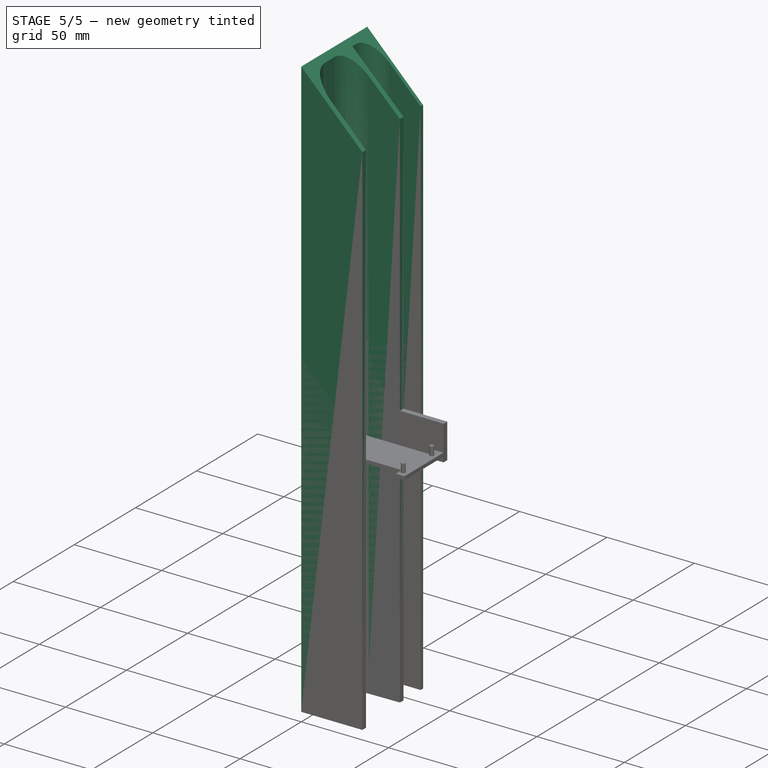
[diagram: stage 5 of 5 — iso view after this stage's code; geometry added in this stage tinted green]
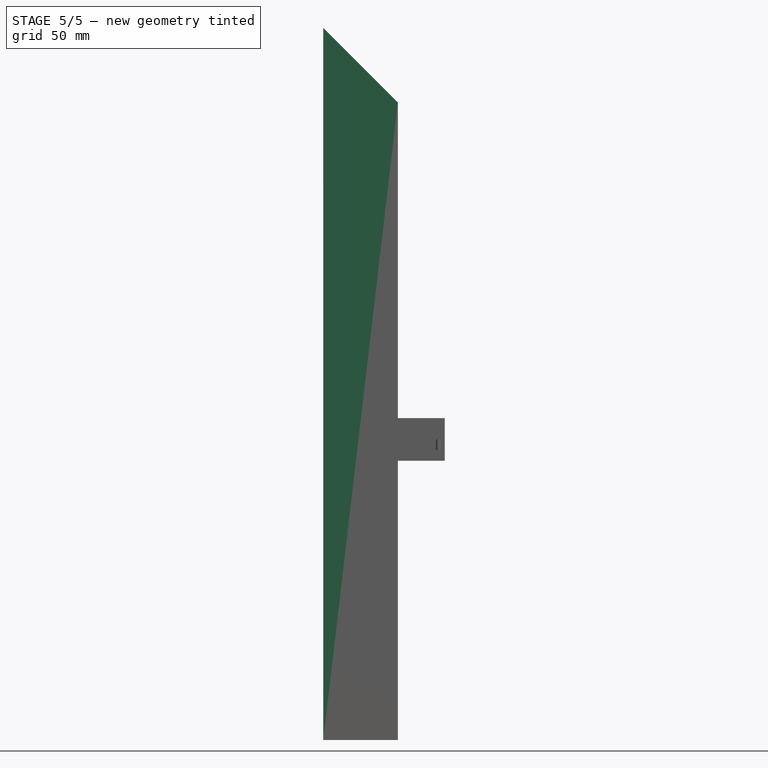
[diagram: stage 5 of 5 — front view after this stage's code; geometry added in this stage tinted green]
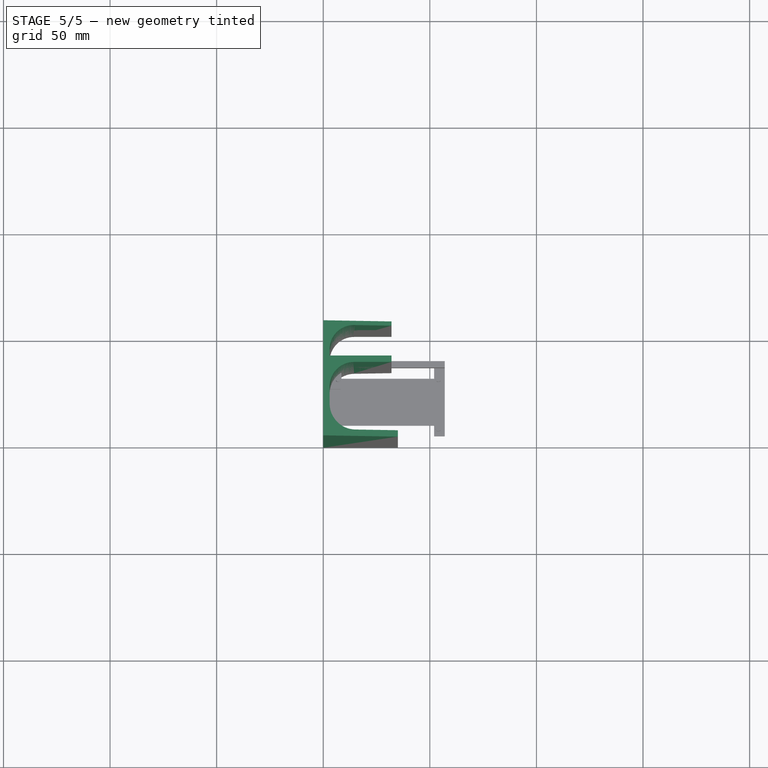
[diagram: stage 5 of 5 — top view after this stage's code; geometry added in this stage tinted green]
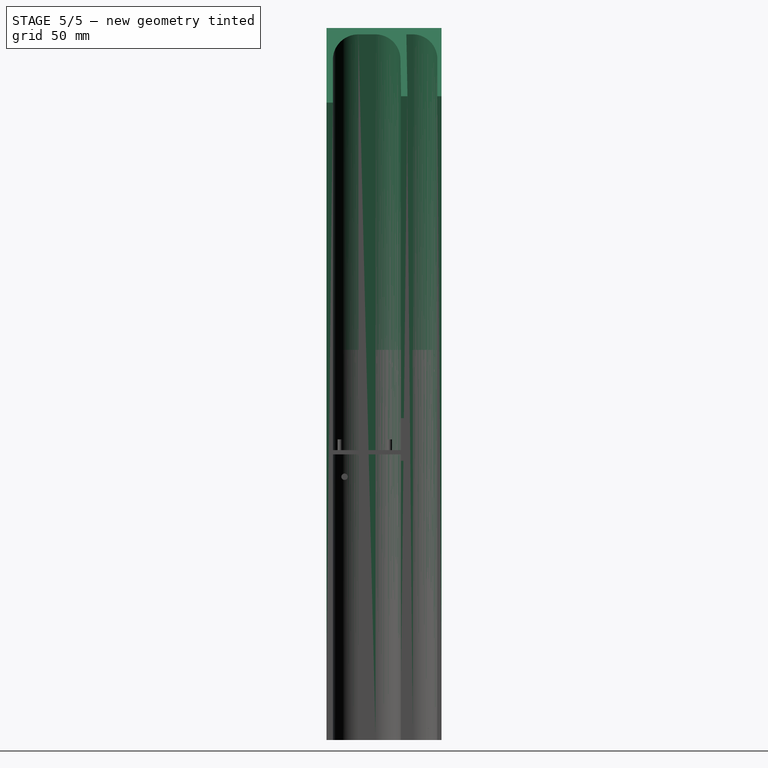
[diagram: stage 5 of 5 — right view after this stage's code; geometry added in this stage tinted green]
FEATURE [Sketcher::SketchObject] Sketch  label="Frame-edge-base-sketch"
  ArcFitTolerance = 1e-06
  AttachmentSupport = -> [XY_Plane]
  ExternalBSplineMaxDegree = 5
  ExternalBSplineTolerance = 0.0001
  FullyConstrained = true
  InternalTolerance = 1e-06
  InvalidShape = false
  MakeInternals = false
  MapMode = 5
  Support = -> [XY_Plane]
  TreeRank = 11
  ValidateShape = false
  sketch-geometry (15):
    g0: LineSegment StartX=32 StartY=52 StartZ=0 EndX=14.5 EndY=52 EndZ=0
    g1: LineSegment StartX=3 StartY=40.5 StartZ=0 EndX=3 EndY=37.5 EndZ=0
    g2: LineSegment StartX=3 StartY=37.5 StartZ=0 EndX=32 EndY=38 EndZ=0
    g3: LineSegment StartX=32 StartY=38 StartZ=0 EndX=32 EndY=35 EndZ=0
    g4: LineSegment StartX=32 StartY=35 StartZ=0 EndX=14.4983 EndY=34.6982 EndZ=0
    g5: LineSegment StartX=3 StartY=23 StartZ=0 EndX=3 EndY=15 EndZ=0
    g6: LineSegment StartX=15 StartY=3 StartZ=0 EndX=35 EndY=3 EndZ=0
    g7: LineSegment StartX=35 StartY=3 StartZ=0 EndX=35 EndY=0 EndZ=0
    g8: LineSegment StartX=35 StartY=0 StartZ=0 EndX=0 EndY=0 EndZ=0
    g9: LineSegment StartX=0 StartY=0 StartZ=0 EndX=-2e-16 EndY=54 EndZ=0
    g10: LineSegment StartX=-2e-16 StartY=54 StartZ=0 EndX=32 EndY=54 EndZ=0
    g11: LineSegment StartX=32 StartY=54 StartZ=0 EndX=32 EndY=52 EndZ=0
    g12: ArcOfCircle CenterX=15 CenterY=15 CenterZ=0 NormalX=0 NormalY=0 NormalZ=1 AngleXU=0 Radius=12 StartAngle=3.14159 EndAngle=4.71239
    g13: ArcOfCircle CenterX=14.7 CenterY=23 CenterZ=0 NormalX=0 NormalY=0 NormalZ=1 AngleXU=0 Radius=11.7 StartAngle=1.58804 EndAngle=3.14159
    g14: ArcOfCircle CenterX=14.5 CenterY=40.5 CenterZ=0 NormalX=0 NormalY=0 NormalZ=1 AngleXU=0 Radius=11.5 StartAngle=1.5708 EndAngle=3.14159
  constraints (41):
    c: Horizontal(g0)
    c: Coincident(g1,g2)
    c: Coincident(g2,g3)
    c: Coincident(g3,g4)
    c: Vertical(g5)
    c: Horizontal(g6)
    c: Coincident(g6,g7)
    c: Coincident(g7,g8)
    c: Horizontal(g8)
    c: Coincident(g8,g9)
    c: Coincident(g9,g10)
    c: Horizontal(g10)
    c: Coincident(g10,g11)
    c: Coincident(g11,g0)
    c: DistanceY(g0,g10) = 2
    c: DistanceY(g7,g6) = 3
    c: DistanceY(g3,g2) = 3
    c: DistanceX(g9,g1) = 3
    c: Vertical(g0,g10)
    c: Vertical(g6,g7)
    c: Vertical(g3,g2)
    c: Coincident(g8,g-1)
    c: Tangent(g5,g12) = -1.5708
    c: Tangent(g6,g12) = -1.5708
    c: DistanceX(g8,g5) = 3
    c: DistanceX(g8,g7) = 35
    c: DistanceX(g6,g6) = 20
    c: Tangent(g4,g13) = -1.5708
    c: Tangent(g5,g13) = -1.5708
    c: DistanceY(g5,g5) = 8
    c: DistanceY(g8,g9) = 54
    c: Parallel(g4,g2)
    c: DistanceX(g9,g5) = 3
    c: DistanceX(g1,g2) = 29
    c: Tangent(g0,g14) = -1.5708
    c: Tangent(g1,g14) = -1.5708
    c: DistanceX(g9,g10) = 32
    c: DistanceX(g9,g1) = 3
    c: DistanceY(g1,g9) = 16.5
    c: DistanceY(g1,g1) = 3
    c: DistanceY(g2,g0) = 14
FEATURE [PartDesign::Pad] Pad
  AddSubType = 0
  AlongSketchNormal = false
  AutoTaperInnerAngle = true
  CheckUpToFaceLimits = true
  ClaimChildren = false
  Direction = (0,0,1)
  Fit = 0
  FitJoin = 0
  InnerFit = 0
  InnerFitJoin = 0
  InvalidShape = false
  Length = 334
  Length2 = 10
  Linearize = true
  NewSolid = false
  Profile = -> Sketch
  ReferenceAxis = -> Sketch [N_Axis]
  Suppress = false
  TaperInnerAngle = 0
  TaperInnerAngleRev = 0
  TreeRank = 12
  Type = 0
  ValidateShape = true
  _ProfileBasedVersion = 1
FEATURE [Sketcher::SketchObject] Sketch001  label="Angle-taper-B"
  ArcFitTolerance = 1e-06
  AttachmentSupport = -> [XZ_Plane]
  ExternalBSplineMaxDegree = 5
  ExternalBSplineTolerance = 0.0001
  ExternalGeometry = -> [Pad]
  FullyConstrained = true
  InternalTolerance = 1e-06
  InvalidShape = false
  MakeInternals = false
  MapMode = 5
  Placement = pos=(0,0,0) rot=(1,0,0;1.5708rad)
  Support = -> [XZ_Plane]
  TreeRank = 13
  ValidateShape = false
  sketch-geometry (3):
    g0: LineSegment StartX=0 StartY=334 StartZ=0 EndX=35 EndY=334 EndZ=0
    g1: LineSegment StartX=35 StartY=299 StartZ=0 EndX=0 EndY=334 EndZ=0
    g2: LineSegment StartX=35 StartY=334 StartZ=0 EndX=35 EndY=299 EndZ=0
  constraints (7):
    c: Coincident(g0,g-4)
    c: Coincident(g0,g-6)
    c: PointOnObject(g1,g-6)
    c: Coincident(g1,g0)
    c: Coincident(g2,g0)
    c: Coincident(g2,g1)
    c: Angle(g1,g0) = 0.785398
FEATURE [PartDesign::Pocket] Pocket
  AddSubType = 1
  AlongSketchNormal = false
  AutoTaperInnerAngle = true
  BaseFeature = -> Pad
  CheckUpToFaceLimits = true
  ClaimChildren = false
  Direction = (0,1,2e-16)
  Fit = 0
  FitJoin = 0
  InnerFit = 0
  InnerFitJoin = 0
  InvalidShape = false
  Length = 50
  Length2 = 10
  Linearize = true
  NewSolid = false
  Profile = -> Sketch001
  ReferenceAxis = -> Sketch001 [N_Axis]
  Suppress = false
  TaperInnerAngle = 0
  TaperInnerAngleRev = 0
  TreeRank = 14
  Type = 1
  ValidateShape = true
  _ProfileBasedVersion = 1
  _Version = 1
FEATURE [Sketcher::SketchObject] Sketch002  label="Angle-taper-T"
  ArcFitTolerance = 1e-06
  AttachmentSupport = -> [XZ_Plane]
  ExternalBSplineMaxDegree = 5
  ExternalBSplineTolerance = 0.0001
  ExternalGeometry = -> [Pocket]
  FullyConstrained = true
  InternalTolerance = 1e-06
  InvalidShape = false
  MakeInternals = false
  MapMode = 5
  Placement = pos=(0,0,0) rot=(1,0,0;1.5708rad)
  Support = -> [XZ_Plane]
  TreeRank = 15
  ValidateShape = false
  sketch-geometry (3):
    g0: LineSegment StartX=0 StartY=0 StartZ=0 EndX=35 EndY=0 EndZ=0
    g1: LineSegment StartX=35 StartY=35 StartZ=0 EndX=0 EndY=0 EndZ=0
    g2: LineSegment StartX=35 StartY=35 StartZ=0 EndX=35 EndY=0 EndZ=0
  constraints (7):
    c: Coincident(g0,g-1)
    c: Coincident(g0,g-3)
    c: PointOnObject(g1,g-3)
    c: Coincident(g1,g0)
    c: Coincident(g2,g1)
    c: Coincident(g2,g0)
    c: Angle(g0,g1) = 0.785398
FEATURE [PartDesign::Pocket] Pocket001
  AddSubType = 1
  AlongSketchNormal = false
  AutoTaperInnerAngle = true
  BaseFeature = -> Pocket
  CheckUpToFaceLimits = true
  ClaimChildren = false
  Direction = (0,1,2e-16)
  Fit = 0
  FitJoin = 0
  InnerFit = 0
  InnerFitJoin = 0
  InvalidShape = false
  Length = 5
  Length2 = 10
  Linearize = true
  NewSolid = false
  Profile = -> Sketch002
  ReferenceAxis = -> Sketch002 [N_Axis]
  Suppress = false
  TaperInnerAngle = 0
  TaperInnerAngleRev = 0
  TreeRank = 16
  Type = 1
  ValidateShape = true
  _ProfileBasedVersion = 1
  _Version = 1
FEATURE [Sketcher::SketchObject] Sketch005  label="Angle-taper-T001"
  ArcFitTolerance = 1e-06
  AttachmentSupport = -> [XZ_Plane001]
  ExternalBSplineMaxDegree = 5
  ExternalBSplineTolerance = 0.0001
  ExternalGeometry = -> [Pad001]
  FullyConstrained = true
  InternalTolerance = 1e-06
  InvalidShape = false
  MakeInternals = false
  MapMode = 5
  Placement = pos=(0,0,0) rot=(1,0,0;1.5708rad)
  Support = -> [XZ_Plane001]
  TreeRank = 15
  ValidateShape = false
  sketch-geometry (3):
    g0: LineSegment StartX=0 StartY=0 StartZ=0 EndX=35 EndY=0 EndZ=0
    g1: LineSegment StartX=35 StartY=35 StartZ=0 EndX=0 EndY=0 EndZ=0
    g2: LineSegment StartX=35 StartY=35 StartZ=0 EndX=35 EndY=0 EndZ=0
  constraints (7):
    c: Coincident(g0,g-1)
    c: Coincident(g1,g0)
    c: Coincident(g2,g1)
    c: Coincident(g2,g0)
    c: Angle(g0,g1) = 0.785398
    c: PointOnObject(g1,g-3)
    c: Coincident(g0,g-4)
FEATURE [PartDesign::Pocket] Pocket003
  AddSubType = 1
  AlongSketchNormal = false
  AutoTaperInnerAngle = true
  BaseFeature = -> Pad001
  CheckUpToFaceLimits = true
  ClaimChildren = false
  Direction = (0,1,2e-16)
  Fit = 0
  FitJoin = 0
  InnerFit = 0
  InnerFitJoin = 0
  InvalidShape = false
  Length = 5
  Length2 = 10
  Linearize = true
  NewSolid = false
  Profile = -> Sketch005
  ReferenceAxis = -> Sketch005 [N_Axis]
  Suppress = false
  TaperInnerAngle = 0
  TaperInnerAngleRev = 0
  TreeRank = 18
  Type = 1
  ValidateShape = true
  _ProfileBasedVersion = 1
  _Version = 1
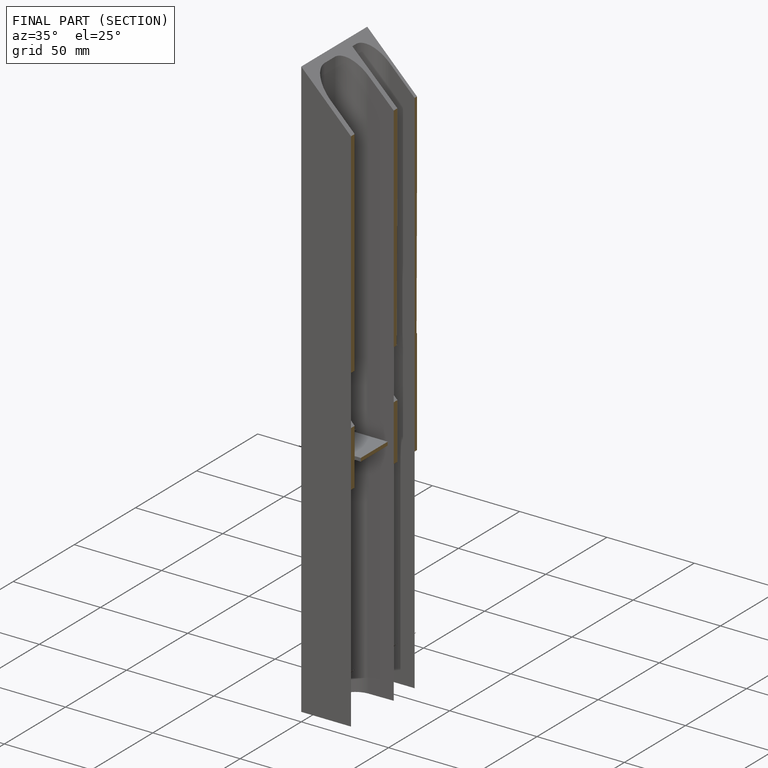
[diagram: finished part — half-section view (interior)]
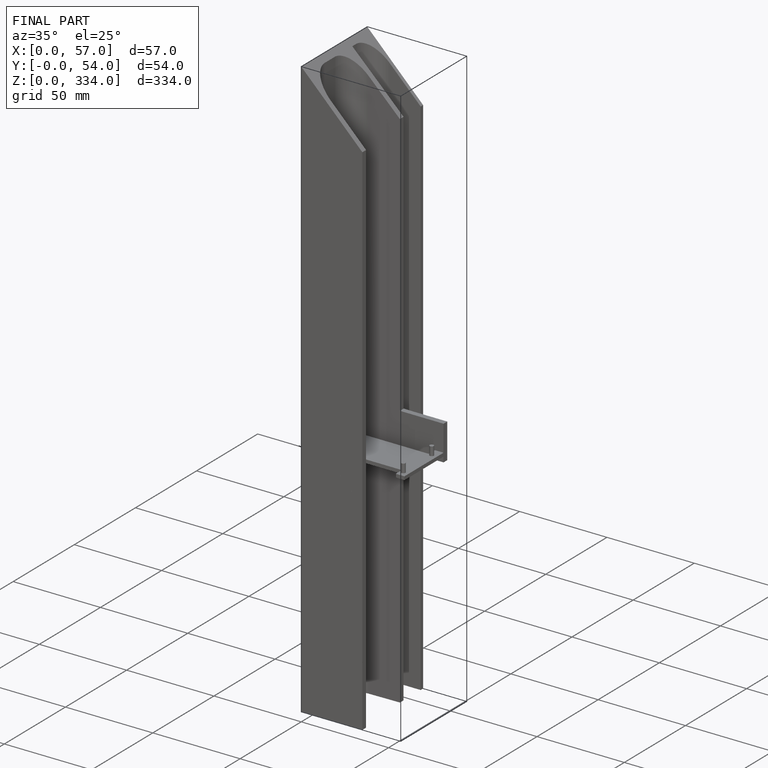
[diagram: finished part — iso view with bounding-box wireframe]
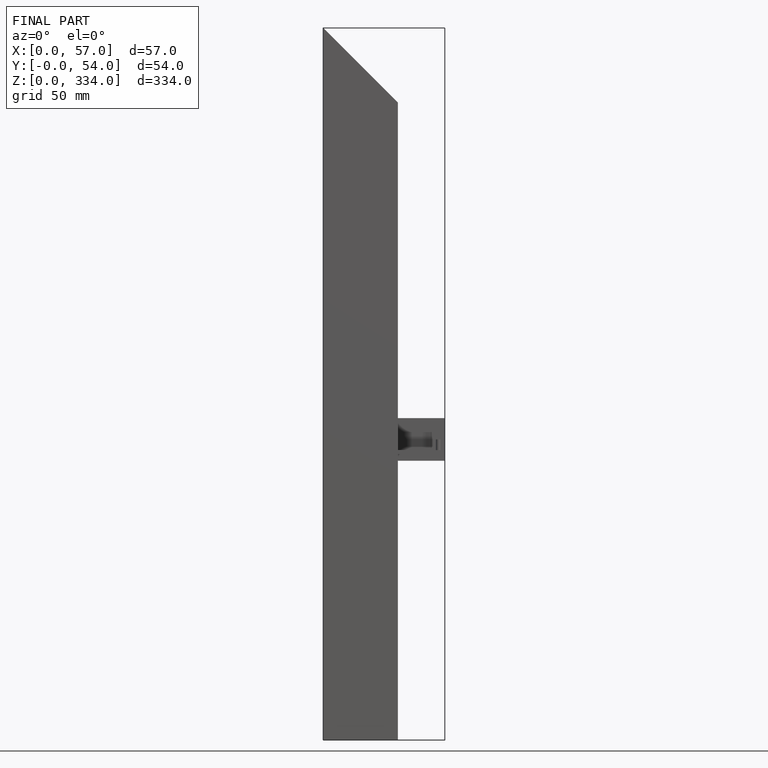
[diagram: finished part — front view with bounding-box wireframe]
